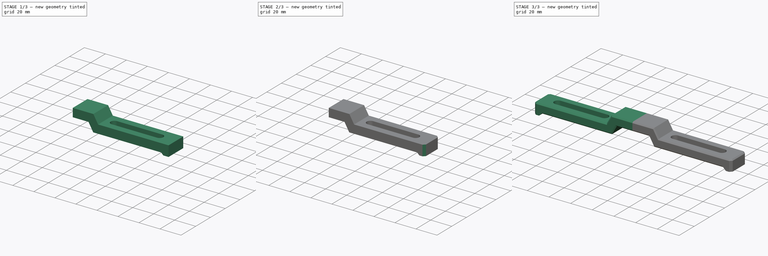
[diagram: build sequence overview — one tinted view per stage of 3, left to right]
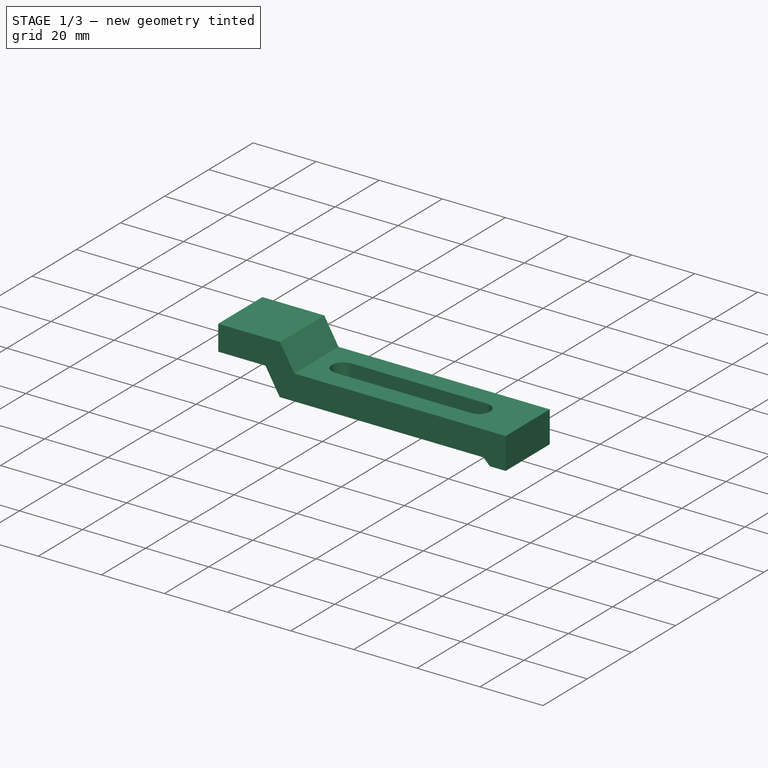
[diagram: stage 1 of 3 — iso view after this stage's code; geometry added in this stage tinted green]
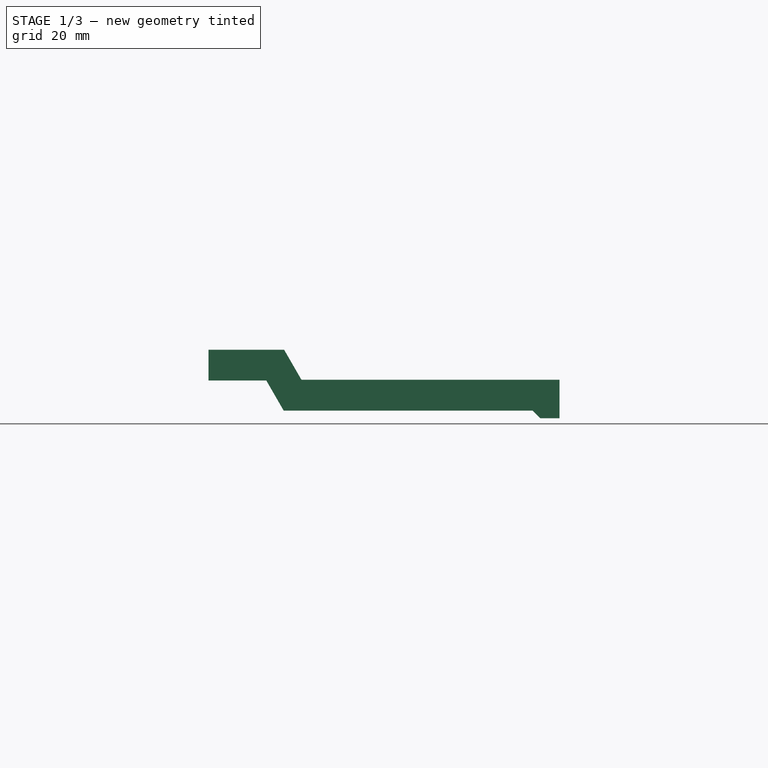
[diagram: stage 1 of 3 — front view after this stage's code; geometry added in this stage tinted green]
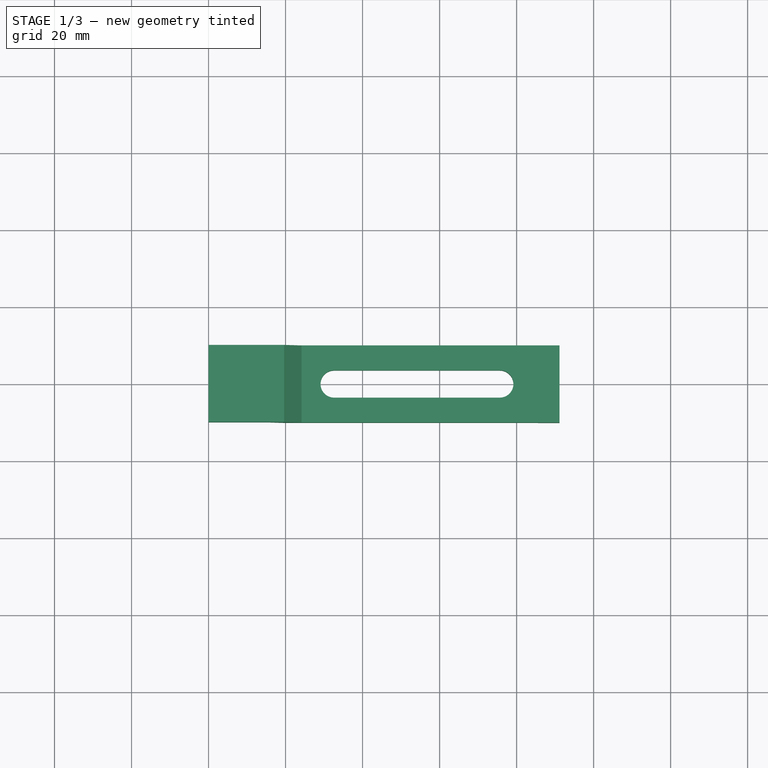
[diagram: stage 1 of 3 — top view after this stage's code; geometry added in this stage tinted green]
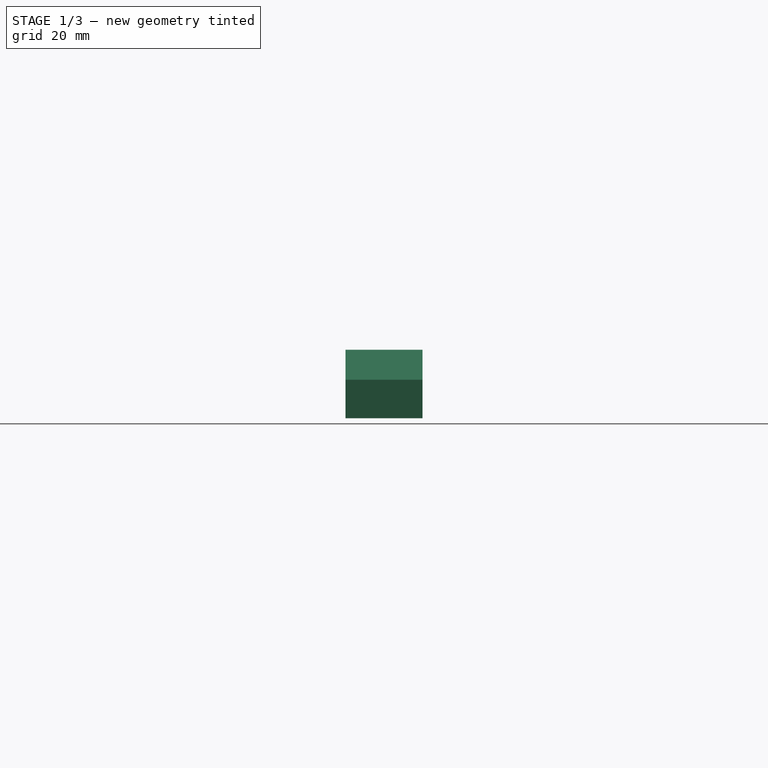
[diagram: stage 1 of 3 — right view after this stage's code; geometry added in this stage tinted green]
FCSTD DOCUMENT  (FreeCAD 0.19R)
Label: foot_clamp
License: All rights reserved
LicenseURL: http://en.wikipedia.org/wiki/All_rights_reserved
objects: Sketcher::SketchObject×2, PartDesign::Chamfer×2, PartDesign::Pad×1, PartDesign::Pocket×1, PartDesign::Mirrored×1, PartDesign::Body×1
note: 12 computed .brp shape members not serialized (recipe doc carries the construction recipe); baked Part::Feature solids carry a one-line shape summary decoded from their .brp

FEATURE [Sketcher::SketchObject] Sketch  label="base_sk"
  FullyConstrained = true
  MapMode = 5
  Placement = pos=(0,0,0) rot=(1,0,0;1.5708rad)
  Support = -> [XZ_Plane]
  sketch-geometry (10):
    g0: LineSegment StartX=0 StartY=17.8 StartZ=0 EndX=19.6188 EndY=17.8 EndZ=0
    g1: LineSegment StartX=0 StartY=9.8 StartZ=0 EndX=15 EndY=9.8 EndZ=0
    g2: LineSegment StartX=15 StartY=9.8 StartZ=0 EndX=19.5033 EndY=2 EndZ=0
    g3: LineSegment StartX=19.5033 StartY=2 StartZ=0 EndX=84.1221 EndY=2 EndZ=0
    g4: LineSegment StartX=84.1221 StartY=2 StartZ=0 EndX=86.1221 EndY=0 EndZ=0
    g5: LineSegment StartX=86.1221 StartY=0 StartZ=0 EndX=91.1221 EndY=0 EndZ=0
    g6: LineSegment StartX=91.1221 StartY=0 StartZ=0 EndX=91.1221 EndY=10 EndZ=0
    g7: LineSegment StartX=91.1221 StartY=10 StartZ=0 EndX=24.1221 EndY=10 EndZ=0
    g8: LineSegment StartX=24.1221 StartY=10 StartZ=0 EndX=19.6188 EndY=17.8 EndZ=0
    g9: LineSegment StartX=0 StartY=17.8 StartZ=0 EndX=0 EndY=9.8 EndZ=0
  constraints (30):
    c: PointOnObject(g0,g-2)
    c: Horizontal(g0)
    c: PointOnObject(g1,g-2)
    c: Horizontal(g1)
    c: Coincident(g2,g1)
    c: Coincident(g3,g2)
    c: Horizontal(g3)
    c: Coincident(g4,g3)
    c: PointOnObject(g4,g-1)
    c: Coincident(g5,g4)
    c: Horizontal(g5)
    c: Coincident(g6,g5)
    c: Vertical(g6)
    c: Horizontal(g7)
    c: Coincident(g8,g7)
    c: Coincident(g8,g0)
    c: Coincident(g9,g0)
    c: Coincident(g9,g1)
    c: DistanceY(g9,g9) = 8
    c: Parallel(g2,g8)
    c: Distance(g1,g8) = 8
    c: DistanceY(g2,g7) = 8
    c: DistanceX(g1,g1) = 15
    c: Coincident(g6,g7)
    c: DistanceY(g4,g3) = 2
    c: DistanceX(g5,g5) = 5
    c: DistanceY(g-1,g1) = 9.8
    c: Angle(g2,g-1) = 1.0472
    c: DistanceX(g7,g3) = 60
    c: Angle(g4,g-1) = 0.785398
FEATURE [PartDesign::Pad] Pad  label="base"
  Direction = (1,1,1)
  Length = 20
  Length2 = 100
  Midplane = true
  Placement = pos=(0,0,0) rot=(1,0,0;1.5708rad)
  Profile = -> Sketch
  Type = 0
FEATURE [Sketcher::SketchObject] Sketch001  label="1on4_slot_sk"
  ExternalGeometry = -> [Pad]
  FullyConstrained = true
  MapMode = 5
  Placement = pos=(0,6.7e-15,10) rot=(0,0,1;3.14159rad)
  Support = -> [Pad]
  sketch-geometry (6):
    g0: ArcOfCircle CenterX=-75.6221 CenterY=0 CenterZ=0 NormalX=0 NormalY=0 NormalZ=1 AngleXU=0 Radius=3.55 StartAngle=1.5708 EndAngle=4.71239
    g1: ArcOfCircle CenterX=-32.6221 CenterY=2e-16 CenterZ=0 NormalX=0 NormalY=0 NormalZ=1 AngleXU=0 Radius=3.55 StartAngle=4.71239 EndAngle=7.85398
    g2: LineSegment StartX=-75.6221 StartY=-3.55 StartZ=0 EndX=-32.6221 EndY=-3.55 EndZ=0
    g3: LineSegment StartX=-75.6221 StartY=3.55 StartZ=0 EndX=-32.6221 EndY=3.55 EndZ=0
    g4: LineSegment StartX=-75.6221 StartY=0 StartZ=0 EndX=-84.1221 EndY=0 EndZ=0
    g5: LineSegment StartX=-32.6221 StartY=2e-16 StartZ=0 EndX=-24.1221 EndY=2e-16 EndZ=0
  constraints (16):
    c: Tangent(g0,g3) = 1.5708
    c: Tangent(g0,g2) = -1.5708
    c: Tangent(g2,g1) = -1.5708
    c: Tangent(g3,g1) = 1.5708
    c: Horizontal(g2)
    c: Equal(g0,g1)
    c: PointOnObject(g0,g-1)
    c: Coincident(g4,g0)
    c: Horizontal(g4)
    c: Coincident(g5,g1)
    c: PointOnObject(g5,g-3)
    c: Horizontal(g5)
    c: Equal(g5,g4)
    c: PointOnObject(g4,g-4)
    c: DistanceX(g0,g1) = 43
    c: Diameter(g0) = 7.1
FEATURE [PartDesign::Pocket] Pocket  label="1on4_slot"
  BaseFeature = -> Pad
  Length = 5
  Length2 = 100
  Placement = pos=(0,0,0) rot=(1,0,0;1.5708rad)
  Profile = -> Sketch001
  Type = 1
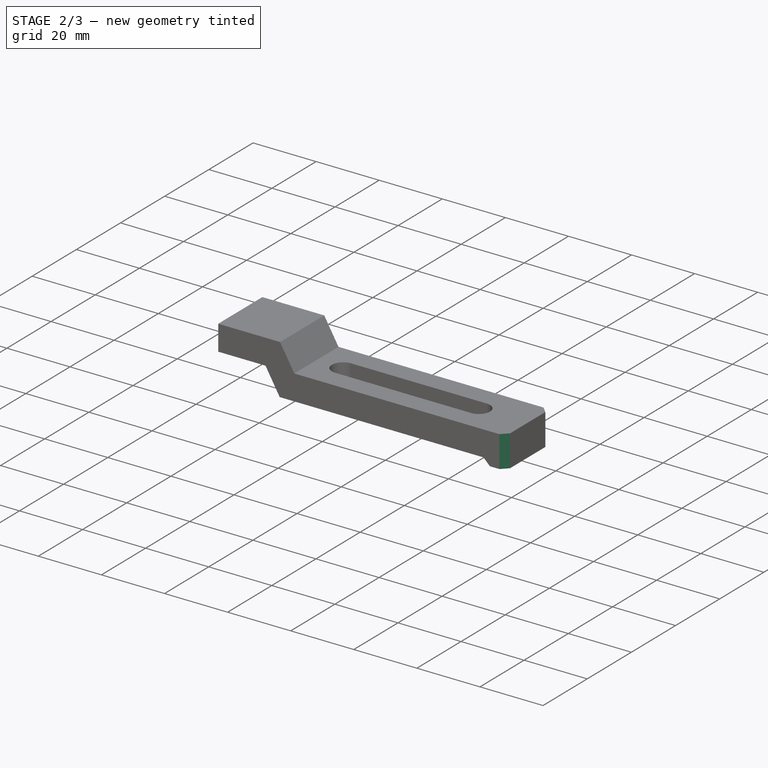
[diagram: stage 2 of 3 — iso view after this stage's code; geometry added in this stage tinted green]
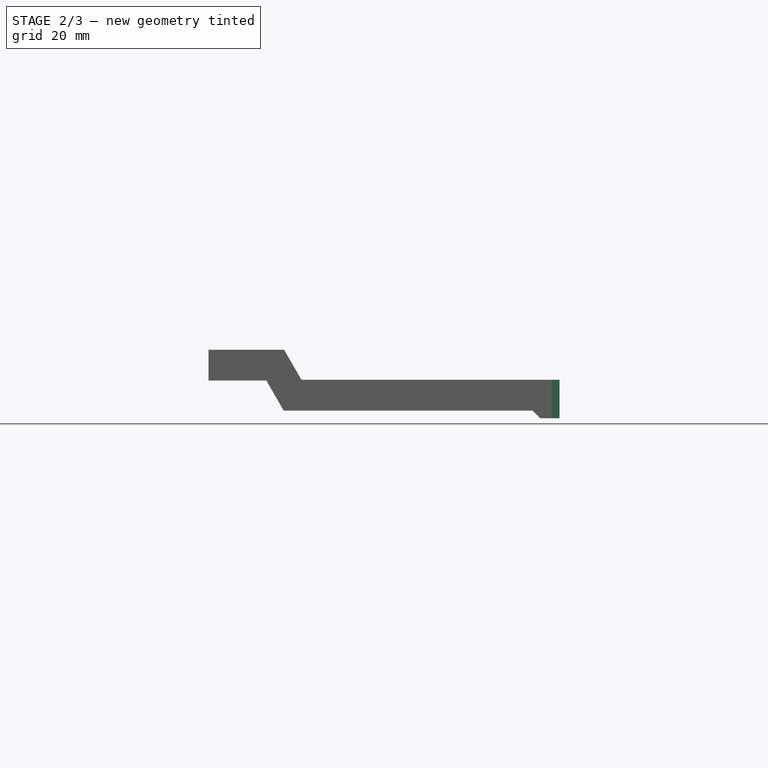
[diagram: stage 2 of 3 — front view after this stage's code; geometry added in this stage tinted green]
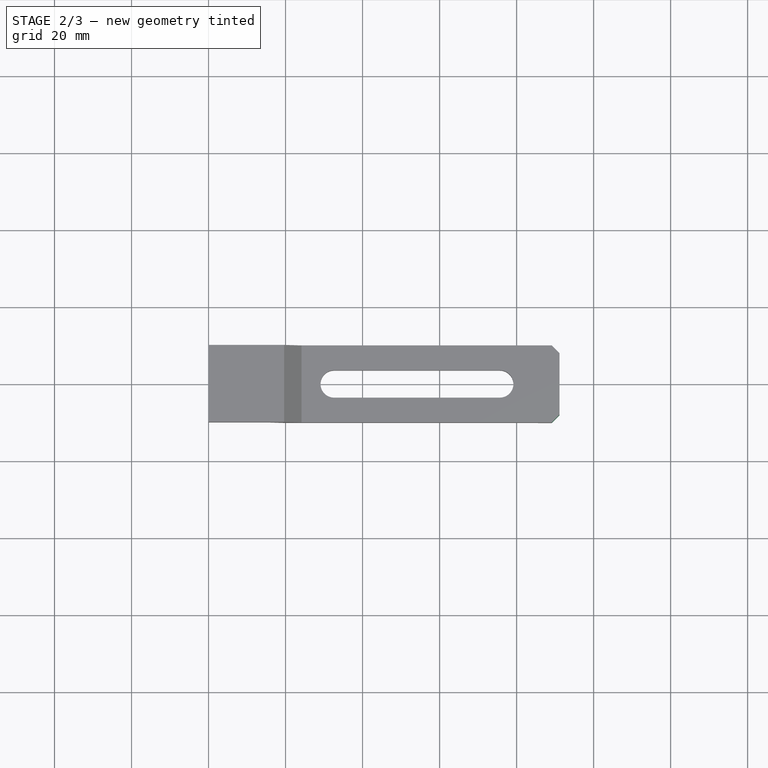
[diagram: stage 2 of 3 — top view after this stage's code; geometry added in this stage tinted green]
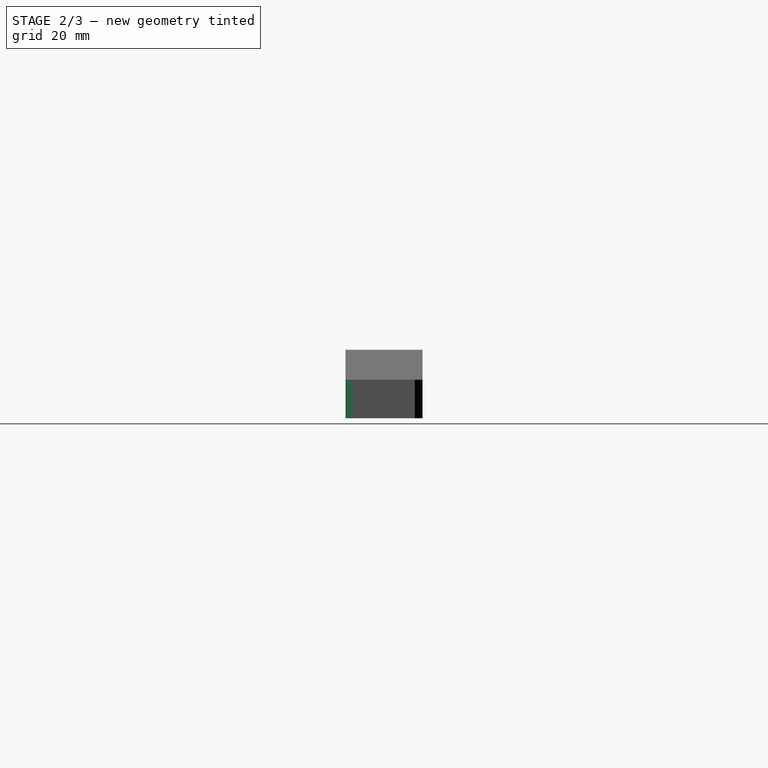
[diagram: stage 2 of 3 — right view after this stage's code; geometry added in this stage tinted green]
FEATURE [PartDesign::Chamfer] Chamfer  label="tip_chamfer"
  Angle = 45
  Base = -> Pocket [Edge19,Edge12]
  BaseFeature = -> Pocket
  ChamferType = 0
  FlipDirection = false
  Placement = pos=(0,0,0) rot=(1,0,0;1.5708rad)
  Size = 2
  Size2 = 1
  SupportTransform = false
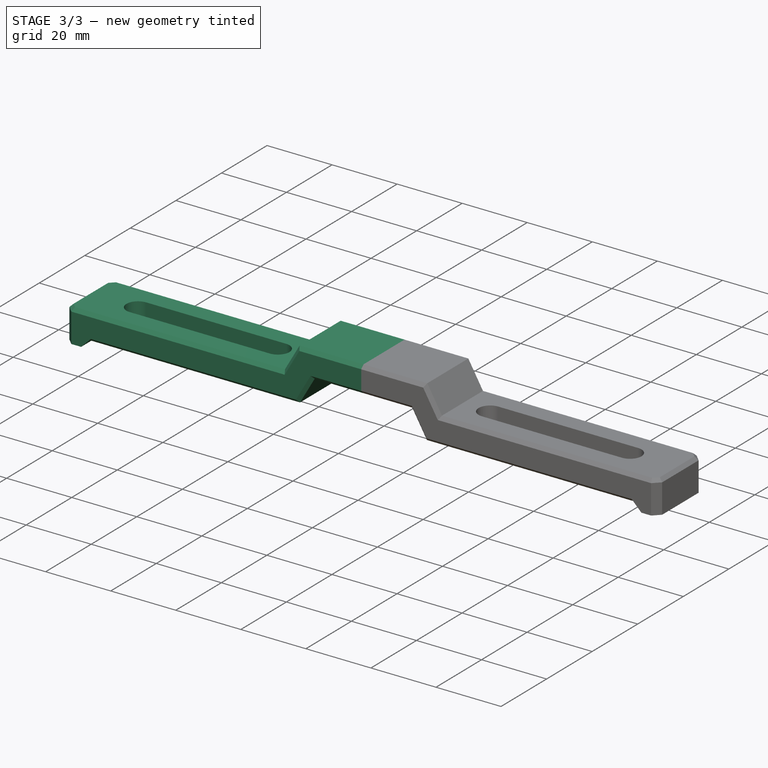
[diagram: stage 3 of 3 — iso view after this stage's code; geometry added in this stage tinted green]
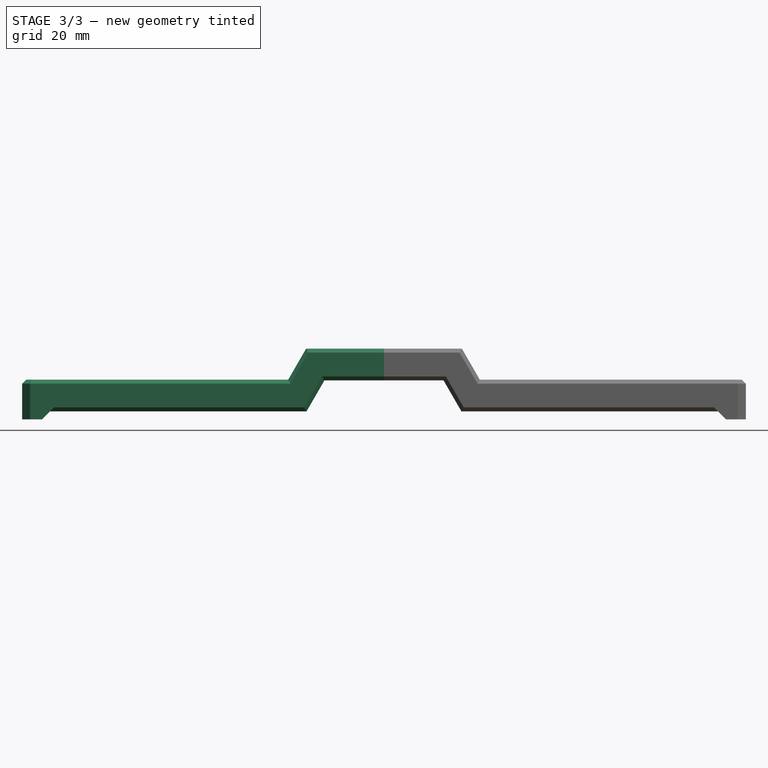
[diagram: stage 3 of 3 — front view after this stage's code; geometry added in this stage tinted green]
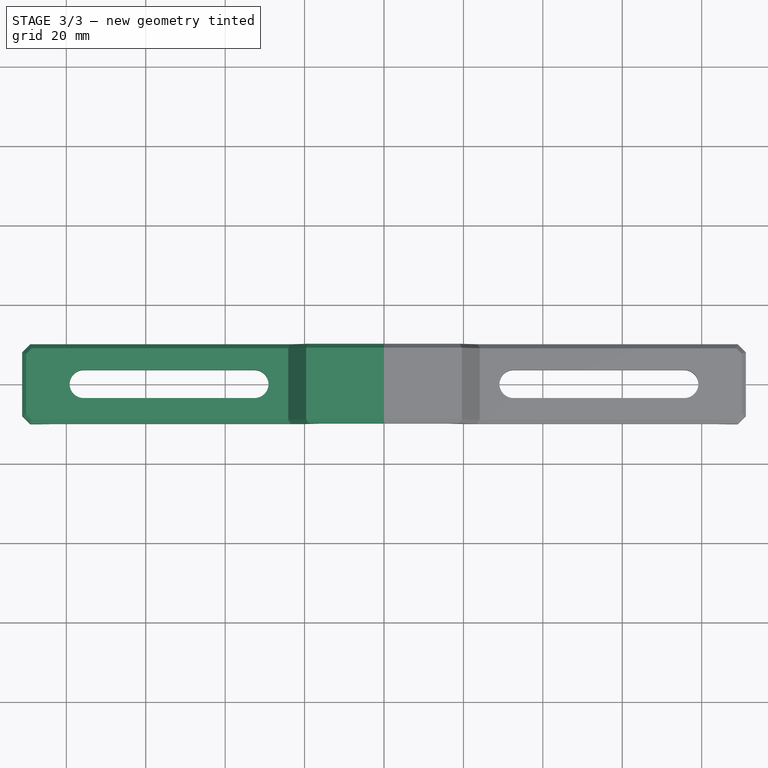
[diagram: stage 3 of 3 — top view after this stage's code; geometry added in this stage tinted green]
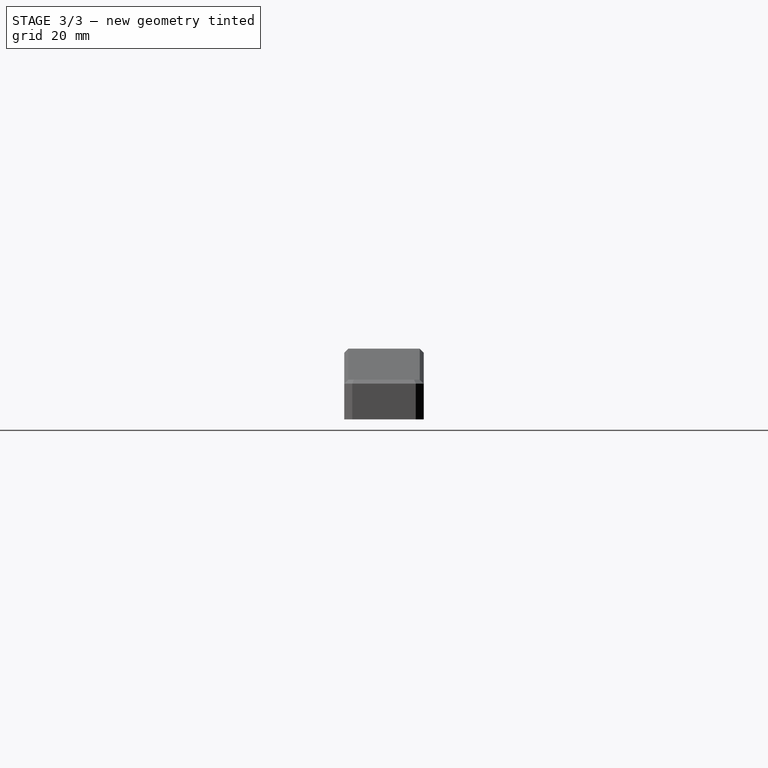
[diagram: stage 3 of 3 — right view after this stage's code; geometry added in this stage tinted green]
FEATURE [PartDesign::Chamfer] Chamfer001  label="edge_chamfer"
  Angle = 45
  Base = -> Chamfer [Edge11,Edge14,Edge1,Edge13,Edge12,Edge29,Edge23,Edge5,Edge3,Edge41,Edge42,Edge35,Edge8,Edge10,Edge9]
  BaseFeature = -> Chamfer
  ChamferType = 0
  FlipDirection = false
  Placement = pos=(0,0,0) rot=(1,0,0;1.5708rad)
  Size = 1
  Size2 = 1
  SupportTransform = false
FEATURE [PartDesign::Mirrored] Mirrored
  BaseFeature = -> Chamfer001
  MirrorPlane = -> YZ_Plane
  Originals = -> [Pad,Pocket,Chamfer,Chamfer001]
  Placement = pos=(0,0,0) rot=(1,0,0;1.5708rad)
FEATURE [PartDesign::Body] Body
  Group = -> [Sketch,Pad,Sketch001,Pocket,Chamfer,Chamfer001,Mirrored]
  Origin = -> Origin
  Tip = -> Mirrored
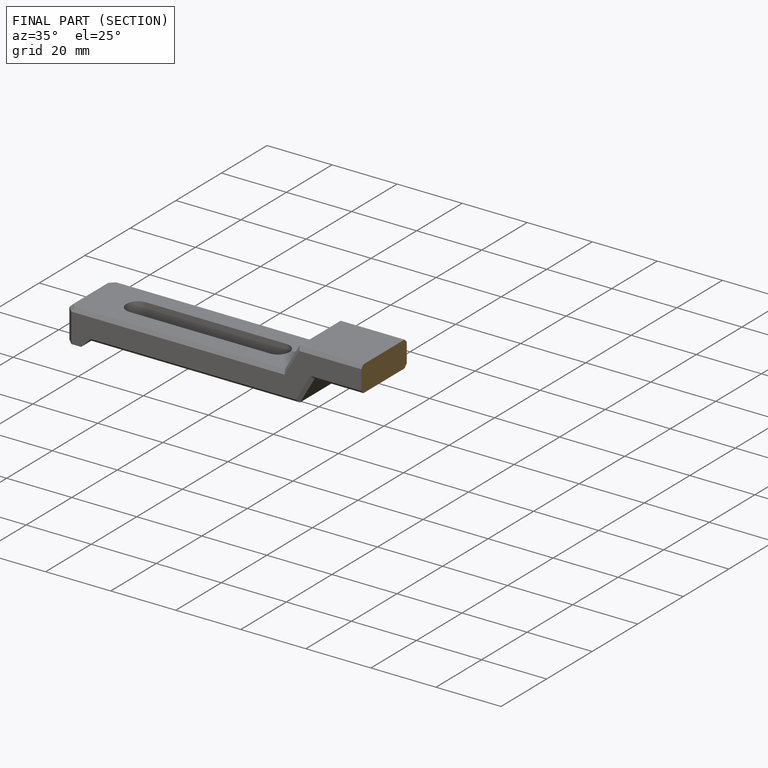
[diagram: finished part — half-section view (interior)]
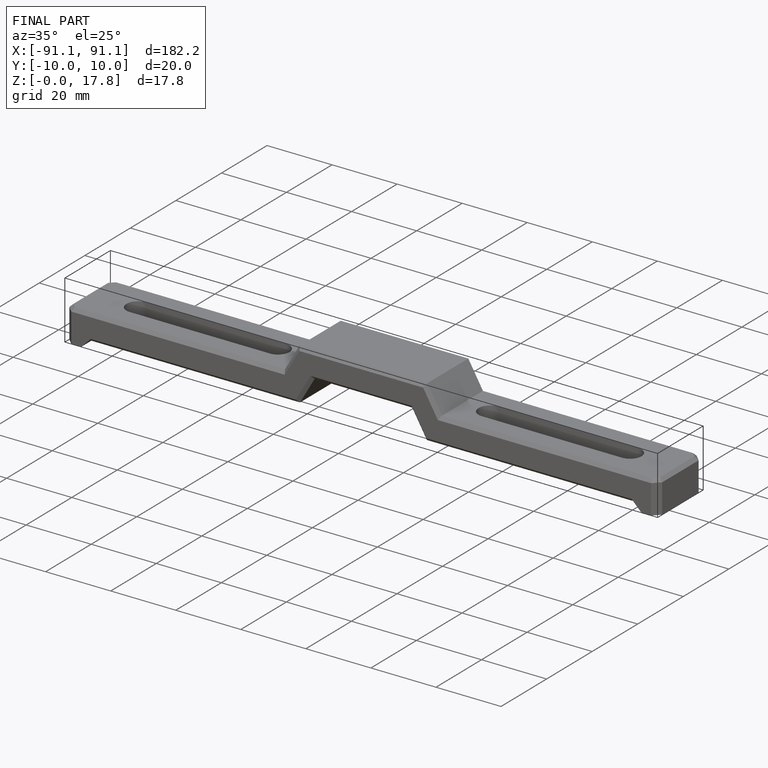
[diagram: finished part — iso view with bounding-box wireframe]
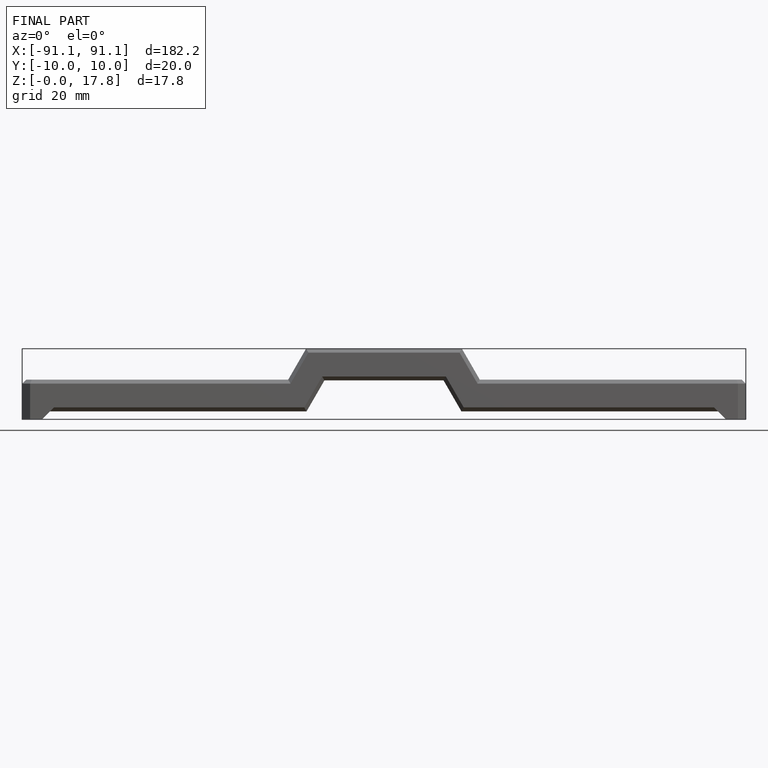
[diagram: finished part — front view with bounding-box wireframe]
